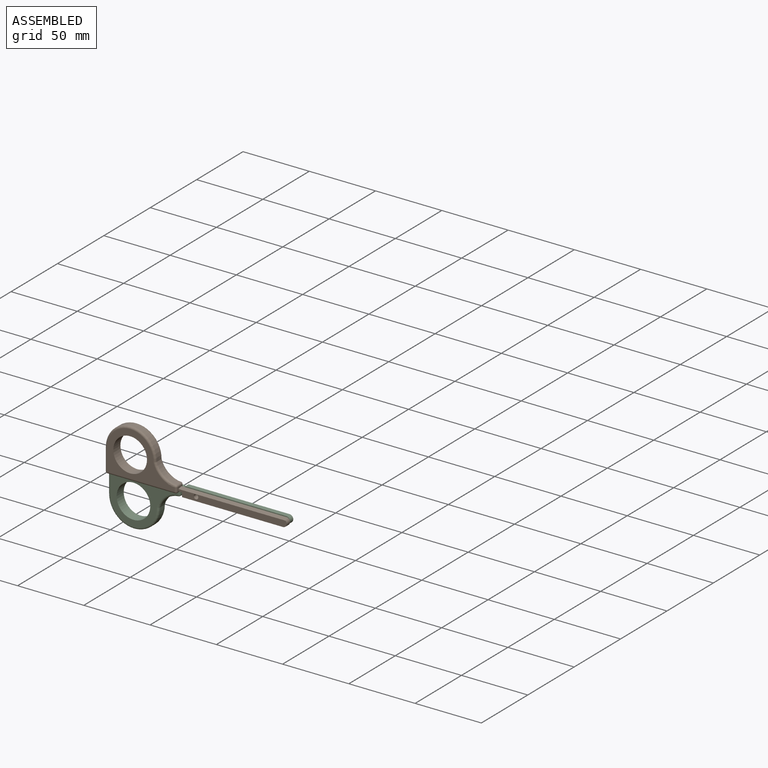
[diagram: assembled view]
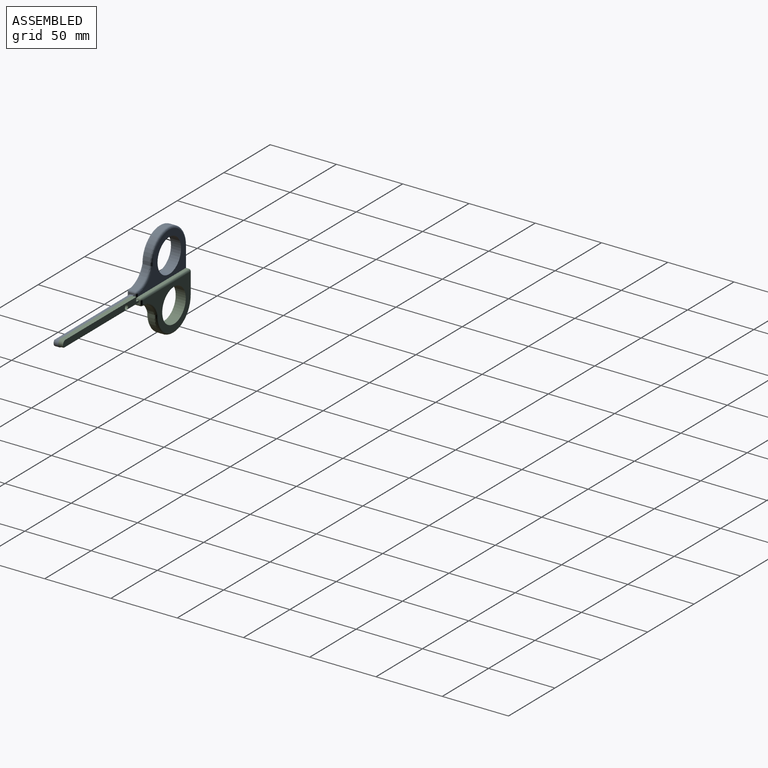
[diagram: assembled view, second angle]
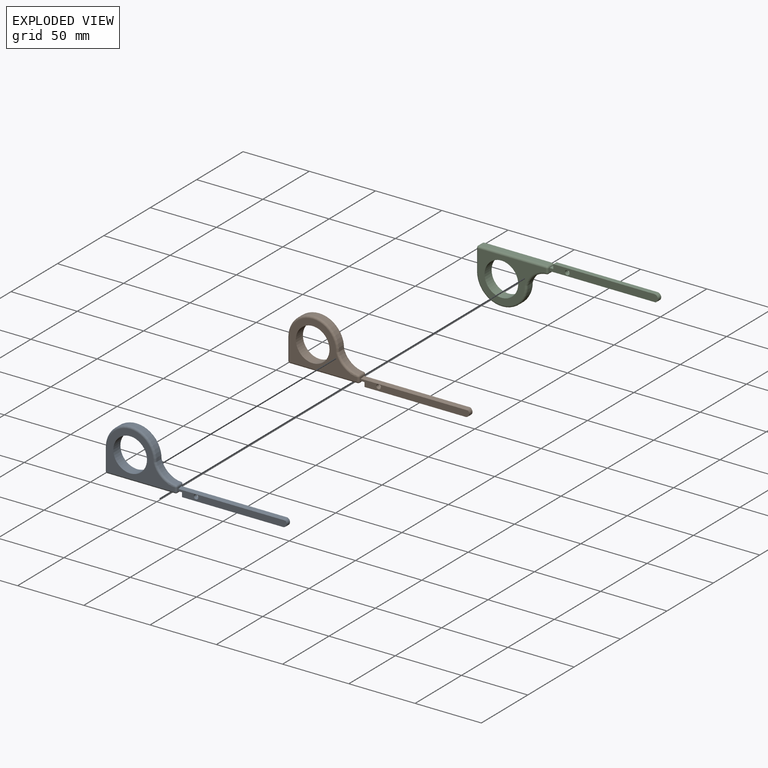
[diagram: exploded view]
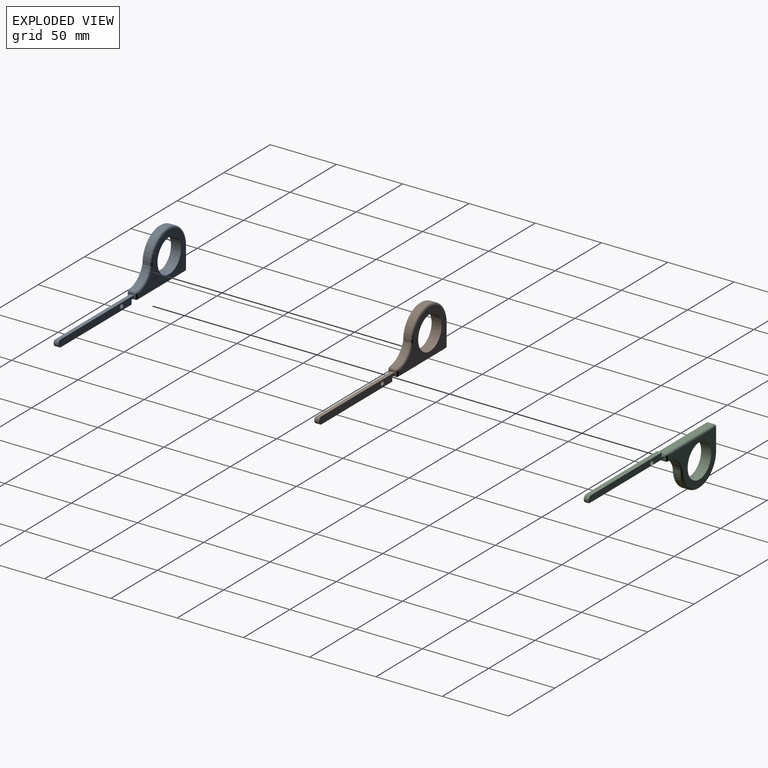
[diagram: exploded view, second angle]
ASSEMBLY  parts=3 mates=2
PART A: 35 faces, bbox 137.3x7.6x40.2 mm
  f0: cylinder r=2.79mm len=5.43mm, axis (0,1,0), area 25.5mm2, adj f1,f2,f5,f34
  f1: plane 81.79x4.83mm, normal (0,-1,0), area 374mm2, adj f0,f3,f4,f5,f6,f8,f34
  f2: plane 81.79x5.43mm, normal (0,1,0), area 422.8mm2, adj f0,f3,f4,f5,f6,f8,f34
  f3: plane 3.56x2.79mm, normal (0,0,-1), area 9.9mm2, adj f1,f2,f4,f7
  f4: plane 3.56x3.3mm, normal (-1,0,0), area 11.7mm2, adj f1,f2,f3,f5
  f5: plane 76.2x3.56mm, normal (0,0,-1), area 271mm2, adj f0,f1,f2,f4
  f6: cylinder r=1.71mm len=3.56mm, axis (0,1,0), area 38.3mm2, adj f1,f2
  f7: cylinder r=1.52mm len=4.57mm, axis (0,1,0), area 10.9mm2, adj f3,f8,f15,f20,f28
  f8: plane 4.57x2.87mm, normal (1,0,0), area 6.6mm2, adj f1,f2,f7,f9,f22,f30,f34
  f9: cylinder r=1.52mm len=4.57mm, axis (0,1,0), area 10.4mm2, adj f8,f10,f24,f32
  f10: cylinder r=16.51mm len=14.47mm, axis (0,1,0), area 89.9mm2, adj f9,f11,f25,f33
  f11: cylinder r=19.05mm len=38.1mm, axis (0,1,0), area 275mm2, adj f10,f12,f23,f31
  f12: plane 16.26x4.57mm, normal (-1,0,0), area 74.3mm2, adj f11,f13,f21,f29
  f13: cylinder r=1.52mm len=4.57mm, axis (0,1,0), area 10.9mm2, adj f12,f15,f19,f27
  f14: cylinder r=12.7mm len=25.4mm, axis (0,1,0), area 608mm2, adj f16,f17
  f15: plane 50.93x4.57mm, normal (0,0,-1), area 232.8mm2, adj f7,f13,f18,f26
  f16: plane 50.93x33.78mm, normal (0,-1,0), area 649.2mm2, adj f14,f26,f29,f30,f31,f33
  f17: plane 50.93x33.78mm, normal (0,1,0), area 649.2mm2, adj f14,f18,f21,f22,f23,f25
  f18: cylinder r=1.52mm len=50.93mm, axis (1,0,0), area 121.9mm2, adj f15,f17,f19,f20
  f19: sphere r=1.52mm, area 3.6mm2, adj f13,f18,f21
  f20: sphere r=1.52mm, area 3.6mm2, adj f7,f18,f22
  f21: cylinder r=1.52mm len=16.26mm, axis (0,0,-1), area 38.9mm2, adj f12,f17,f19,f23
  f22: cylinder r=1.52mm len=2.87mm, axis (0,0,1), area 6.9mm2, adj f8,f17,f20,f24
  f23: torus R=17.53mm, axis (0,-1,0), area 140mm2, adj f11,f17,f21,f25
  f24: sphere r=1.52mm, area 3.5mm2, adj f9,f22,f25
  f25: torus R=18.03mm, axis (0,-1,0), area 48.9mm2, adj f10,f17,f23,f24
  f26: cylinder r=1.52mm len=50.93mm, axis (-1,0,0), area 121.9mm2, adj f15,f16,f27,f28
  f27: sphere r=1.52mm, area 3.6mm2, adj f13,f26,f29
  f28: sphere r=1.52mm, area 3.6mm2, adj f7,f26,f30
  f29: cylinder r=1.52mm len=16.26mm, axis (0,0,1), area 38.9mm2, adj f12,f16,f27,f31
  f30: cylinder r=1.52mm len=2.87mm, axis (0,0,-1), area 6.9mm2, adj f8,f16,f28,f32
  f31: torus R=17.53mm, axis (0,-1,0), area 140mm2, adj f11,f16,f29,f33
  f32: sphere r=1.52mm, area 3.5mm2, adj f9,f30,f33
  f33: torus R=18.03mm, axis (0,-1,0), area 48.9mm2, adj f10,f16,f31,f32
  f34: plane 80.91x3.56mm, normal (0,-0.17,0.99), area 290.4mm2, adj f0,f1,f2,f8
PART B: same geometry as A
PART C: same geometry as A
PLACE A t=(180.42,-44.97,-37.57)mm fixed
PLACE B t=(180.42,-44.97,-37.57)mm
PLACE C rot(axis=(1,0,0),180deg) t=(180.42,-41.42,-47.08)mm
MATE revolute B.f6 <-> A.f6  axis (0,1,0) through (212.36,-43.19,-42.32)mm
MATE revolute C.f6 <-> A.f6  axis (0,-1,0) through (212.36,-43.19,-42.32)mm
